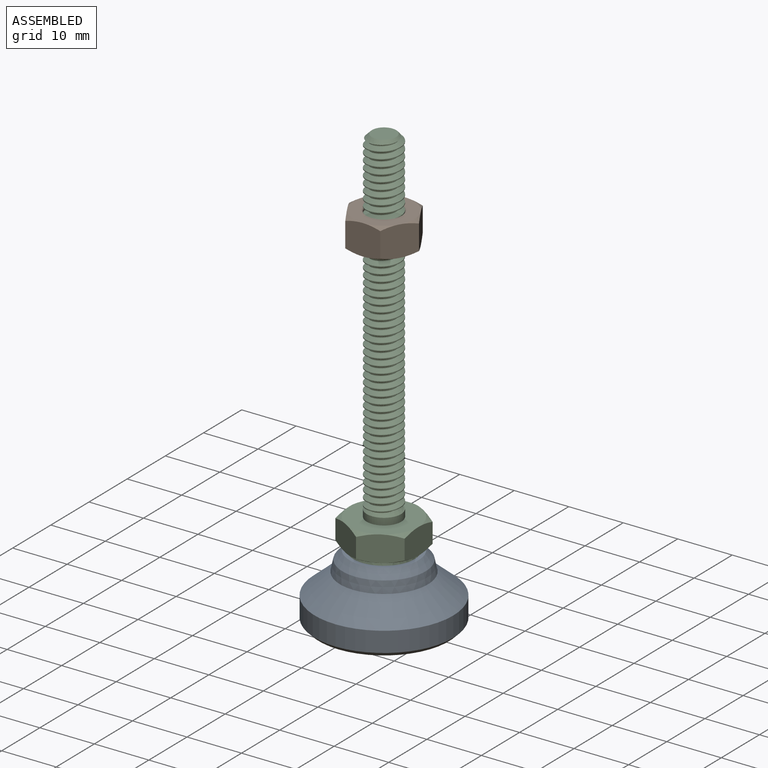
[diagram: assembled view]
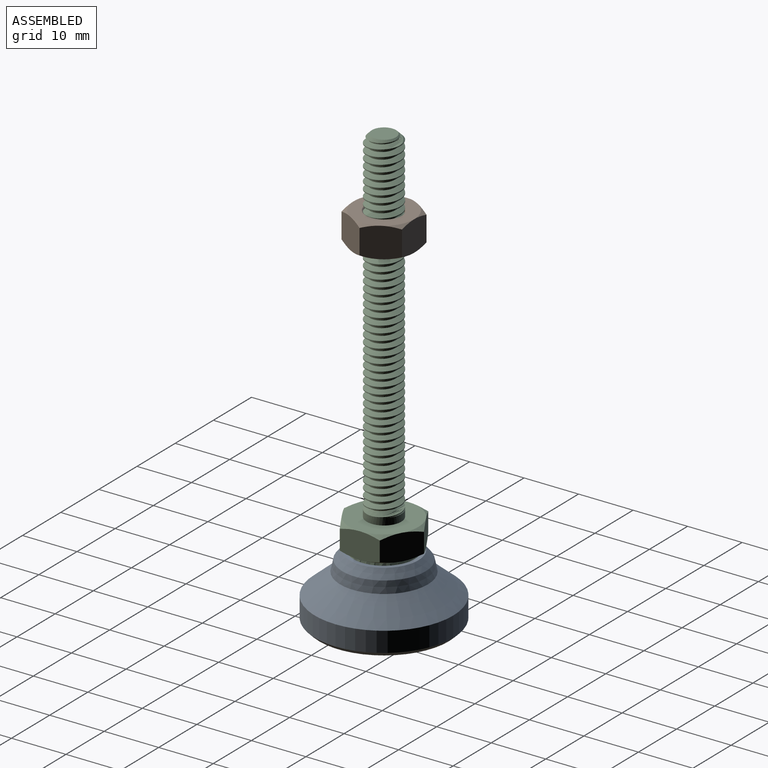
[diagram: assembled view, second angle]
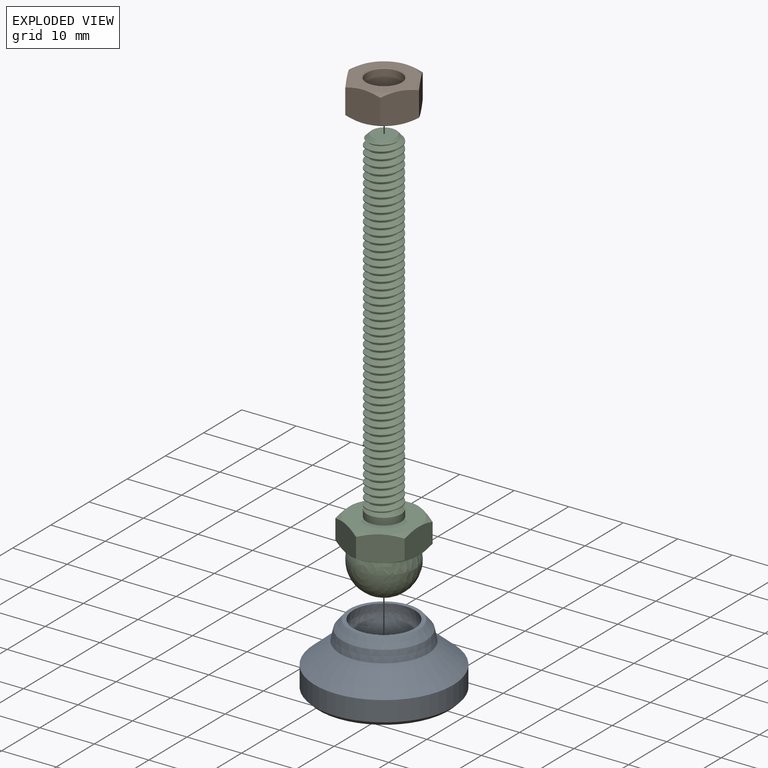
[diagram: exploded view]
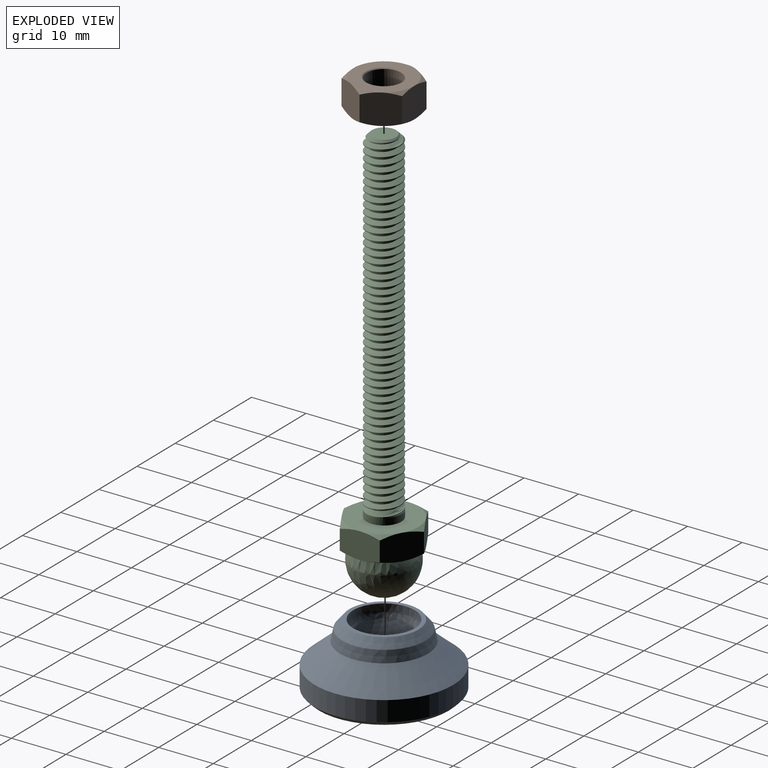
[diagram: exploded view, second angle]
ASSEMBLY  parts=3 mates=2
PART A: 8 faces, bbox 25.4x16.3x25.4 mm
  f0: cone r=12.7mm half-angle=45deg, axis (0,1,0), area 83.4mm2, adj f1,f6
  f1: cylinder r=12.7mm len=25.4mm, axis (0,-1,0), area 293.9mm2, adj f0,f2
  f2: cone r=8.06mm half-angle=49.7deg, axis (0,-1,0), area 396.7mm2, adj f1,f3
  f3: cone r=7.62mm half-angle=12.3deg, axis (0,-1,0), area 102.5mm2, adj f2,f4
  f4: cone r=6.35mm half-angle=39.8deg, axis (0,-1,0), area 87.1mm2, adj f3,f7
  f5: sphere r=5.84mm, area 270.4mm2, adj f7
  f6: plane 23.88x23.88mm, normal (0,-1,0), area 447.7mm2, adj f0
  f7: plane 12.7x12.7mm, normal (0,1,0), area 26.8mm2, adj f4,f5
PART B: 23 faces, bbox 13.4x6.1x13.4 mm
  f0: cylinder r=3.17mm len=6.35mm, axis (0,1,0), area 104.5mm2, adj f1,f2
  f1: cone r=3.17mm half-angle=45deg, axis (0,1,0), area 4.6mm2, adj f0,f6
  f2: cone r=3.33mm half-angle=45deg, axis (0,-1,0), area 4.6mm2, adj f0,f5
  f3: cone r=5.56mm half-angle=60deg, axis (0,1,0), area 3mm2, adj f5,f17,f22
  f4: cone r=6.42mm half-angle=60deg, axis (0,-1,0), area 3mm2, adj f6,f19,f20
  f5: plane 11.11x11.11mm, normal (0,-1,0), area 62.1mm2, adj f2,f3,f12,f13,f14,f15,f16
  f6: plane 11.11x11.11mm, normal (0,1,0), area 62.1mm2, adj f1,f4,f7,f8,f9,f10,f11
  f7: cone r=6.42mm half-angle=60deg, axis (0,-1,0), area 3mm2, adj f6,f17,f22
  f8: cone r=6.42mm half-angle=60deg, axis (0,-1,0), area 3mm2, adj f6,f21,f22
  f9: cone r=6.42mm half-angle=60deg, axis (0,-1,0), area 3mm2, adj f6,f20,f21
  f10: cone r=6.42mm half-angle=60deg, axis (0,-1,0), area 3mm2, adj f6,f18,f19
  f11: cone r=6.42mm half-angle=60deg, axis (0,-1,0), area 3mm2, adj f6,f17,f18
  f12: cone r=5.56mm half-angle=60deg, axis (0,1,0), area 3mm2, adj f5,f21,f22
  f13: cone r=5.56mm half-angle=60deg, axis (0,1,0), area 3mm2, adj f5,f20,f21
  f14: cone r=5.56mm half-angle=60deg, axis (0,1,0), area 3mm2, adj f5,f19,f20
  f15: cone r=5.56mm half-angle=60deg, axis (0,1,0), area 3mm2, adj f5,f18,f19
  f16: cone r=5.56mm half-angle=60deg, axis (0,1,0), area 3mm2, adj f5,f17,f18
  f17: plane 6.08x6.08mm, normal (0.5,0,0.87), area 33.5mm2, adj f3,f7,f11,f16,f18,f22
  f18: plane 6.94x6.09mm, normal (1,0,0), area 33.5mm2, adj f10,f11,f15,f16,f17,f19
  f19: plane 6.08x6.08mm, normal (0.5,0,-0.87), area 33.5mm2, adj f4,f10,f14,f15,f18,f20
  f20: plane 6.08x6.08mm, normal (-0.5,0,-0.87), area 33.5mm2, adj f4,f9,f13,f14,f19,f21
  f21: plane 6.94x6.09mm, normal (-1,0,0), area 33.5mm2, adj f8,f9,f12,f13,f20,f22
  f22: plane 6.08x6.08mm, normal (-0.5,0,0.87), area 33.5mm2, adj f3,f7,f8,f12,f17,f21
PART C: 76 faces, bbox 15.3x77.5x15.3 mm
  f0: cone r=3.17mm half-angle=45deg, axis (0,-1,0), area 10.5mm2, adj f5,f54,f55,f56
  f1: cone r=7.33mm half-angle=60deg, axis (0,-1,0), area 4mm2, adj f57,f69,f70
  f2: cone r=6.35mm half-angle=60deg, axis (0,1,0), area 4mm2, adj f59,f66,f67
  f3: sphere r=5.84mm, area 298.4mm2, adj f59
  f4: cone r=2.21mm half-angle=45deg, axis (0,-1,0), area 12.5mm2, adj f53,f54,f55,f56,f58
  f5: cylinder r=3.17mm len=6.35mm, axis (0,-1,0), area 27.5mm2, adj f0,f6,f54,f56,f57
  f6: cylinder r=3.17mm len=6.35mm, axis (0,-1,0), area 3.2mm2, adj f5,f7,f54,f56
  f7: cylinder r=3.17mm len=6.35mm, axis (0,-1,0), area 3.2mm2, adj f6,f8,f54,f56
  f8: cylinder r=3.17mm len=6.35mm, axis (0,-1,0), area 3.2mm2, adj f7,f9,f54,f56
  f9: cylinder r=3.17mm len=6.35mm, axis (0,-1,0), area 3.2mm2, adj f8,f10,f54,f56
  f10: cylinder r=3.17mm len=6.35mm, axis (0,-1,0), area 3.2mm2, adj f9,f11,f54,f56
  f11: cylinder r=3.17mm len=6.35mm, axis (0,-1,0), area 3.2mm2, adj f10,f12,f54,f56
  f12: cylinder r=3.17mm len=6.35mm, axis (0,-1,0), area 3.2mm2, adj f11,f13,f54,f56
  f13: cylinder r=3.17mm len=6.35mm, axis (0,-1,0), area 3.2mm2, adj f12,f14,f54,f56
  f14: cylinder r=3.17mm len=6.35mm, axis (0,-1,0), area 3.2mm2, adj f13,f15,f54,f56
  f15: cylinder r=3.17mm len=6.35mm, axis (0,-1,0), area 3.2mm2, adj f14,f16,f54,f56
  f16: cylinder r=3.17mm len=6.35mm, axis (0,-1,0), area 3.2mm2, adj f15,f17,f54,f56
  f17: cylinder r=3.17mm len=6.35mm, axis (0,-1,0), area 3.2mm2, adj f16,f18,f54,f56
  f18: cylinder r=3.17mm len=6.35mm, axis (0,-1,0), area 3.2mm2, adj f17,f19,f54,f56
  f19: cylinder r=3.17mm len=6.35mm, axis (0,-1,0), area 3.2mm2, adj f18,f20,f54,f56
  f20: cylinder r=3.17mm len=6.35mm, axis (0,-1,0), area 3.2mm2, adj f19,f21,f54,f56
  f21: cylinder r=3.17mm len=6.35mm, axis (0,-1,0), area 3.2mm2, adj f20,f22,f54,f56
  f22: cylinder r=3.17mm len=6.35mm, axis (0,-1,0), area 3.2mm2, adj f21,f23,f54,f56
  f23: cylinder r=3.17mm len=6.35mm, axis (0,-1,0), area 3.2mm2, adj f22,f24,f54,f56
  f24: cylinder r=3.17mm len=6.35mm, axis (0,-1,0), area 3.2mm2, adj f23,f25,f54,f56
  f25: cylinder r=3.17mm len=6.35mm, axis (0,-1,0), area 3.2mm2, adj f24,f26,f54,f56
  f26: cylinder r=3.17mm len=6.35mm, axis (0,-1,0), area 3.2mm2, adj f25,f27,f54,f56
  f27: cylinder r=3.17mm len=6.35mm, axis (0,-1,0), area 3.2mm2, adj f26,f28,f54,f56
  f28: cylinder r=3.17mm len=6.35mm, axis (0,-1,0), area 3.2mm2, adj f27,f29,f54,f56
  f29: cylinder r=3.17mm len=6.35mm, axis (0,-1,0), area 3.2mm2, adj f28,f30,f54,f56
  f30: cylinder r=3.17mm len=6.35mm, axis (0,-1,0), area 3.2mm2, adj f29,f31,f54,f56
  f31: cylinder r=3.17mm len=6.35mm, axis (0,-1,0), area 3.2mm2, adj f30,f32,f54,f56
  f32: cylinder r=3.17mm len=6.35mm, axis (0,-1,0), area 3.2mm2, adj f31,f33,f54,f56
  f33: cylinder r=3.17mm len=6.35mm, axis (0,-1,0), area 3.2mm2, adj f32,f34,f54,f56
  f34: cylinder r=3.17mm len=6.35mm, axis (0,-1,0), area 3.2mm2, adj f33,f35,f54,f56
  f35: cylinder r=3.17mm len=6.35mm, axis (0,-1,0), area 3.2mm2, adj f34,f36,f54,f56
  f36: cylinder r=3.17mm len=6.35mm, axis (0,-1,0), area 3.2mm2, adj f35,f37,f54,f56
  f37: cylinder r=3.17mm len=6.35mm, axis (0,-1,0), area 3.2mm2, adj f36,f38,f54,f56
  f38: cylinder r=3.17mm len=6.35mm, axis (0,-1,0), area 3.2mm2, adj f37,f39,f54,f56
  f39: cylinder r=3.17mm len=6.35mm, axis (0,-1,0), area 3.2mm2, adj f38,f40,f54,f56
  f40: cylinder r=3.17mm len=6.35mm, axis (0,-1,0), area 3.2mm2, adj f39,f41,f54,f56
  f41: cylinder r=3.17mm len=6.35mm, axis (0,-1,0), area 3.2mm2, adj f40,f42,f54,f56
  f42: cylinder r=3.17mm len=6.35mm, axis (0,-1,0), area 3.2mm2, adj f41,f43,f54,f56
  f43: cylinder r=3.17mm len=6.35mm, axis (0,-1,0), area 3.2mm2, adj f42,f44,f54,f56
  f44: cylinder r=3.17mm len=6.35mm, axis (0,-1,0), area 3.2mm2, adj f43,f45,f54,f56
  f45: cylinder r=3.17mm len=6.35mm, axis (0,-1,0), area 3.2mm2, adj f44,f46,f54,f56
  f46: cylinder r=3.17mm len=6.35mm, axis (0,-1,0), area 3.2mm2, adj f45,f47,f54,f56
  f47: cylinder r=3.17mm len=6.35mm, axis (0,-1,0), area 3.2mm2, adj f46,f48,f54,f56
  f48: cylinder r=3.17mm len=6.35mm, axis (0,-1,0), area 3.2mm2, adj f47,f49,f54,f56
  f49: cylinder r=3.17mm len=6.35mm, axis (0,-1,0), area 3.2mm2, adj f48,f50,f54,f56
  f50: cylinder r=3.17mm len=6.35mm, axis (0,-1,0), area 3.2mm2, adj f49,f51,f54,f56
  f51: cylinder r=3.17mm len=6.35mm, axis (0,-1,0), area 3.2mm2, adj f50,f52,f54,f56
  f52: cylinder r=3.17mm len=6.35mm, axis (0,-1,0), area 3.2mm2, adj f51,f53,f54,f56
  f53: cylinder r=3.17mm len=6.35mm, axis (0,-1,0), area 1.8mm2, adj f4,f52,f54,f56
  f54: bspline ~62.28x6.49mm, area 876.1mm2, adj f0,f4,f5,f6,f7,f8,f9,f10
  f55: cylinder r=2.35mm len=61.27mm, axis (0,1,0), area 113.3mm2, adj f0,f4,f54,f56
  f56: bspline ~63.38x6.49mm, area 798.9mm2, adj f0,f4,f5,f6,f7,f8,f9,f10
  f57: plane 12.7x12.7mm, normal (0,1,0), area 95mm2, adj f1,f5,f71,f72,f73,f74,f75
  f58: plane 4.43x4.43mm, normal (0,1,0), area 15.4mm2, adj f4
  f59: plane 12.7x12.7mm, normal (0,-1,0), area 35.9mm2, adj f2,f3,f60,f61,f62,f63,f64
  f60: cone r=6.35mm half-angle=60deg, axis (0,1,0), area 4mm2, adj f59,f67,f68
  f61: cone r=6.35mm half-angle=60deg, axis (0,1,0), area 4mm2, adj f59,f68,f69
  f62: cone r=6.35mm half-angle=60deg, axis (0,1,0), area 4mm2, adj f59,f69,f70
  f63: cone r=6.35mm half-angle=60deg, axis (0,1,0), area 4mm2, adj f59,f65,f70
  f64: cone r=6.35mm half-angle=60deg, axis (0,1,0), area 4mm2, adj f59,f65,f66
  f65: plane 7.94x5.37mm, normal (1,0,0), area 32.1mm2, adj f63,f64,f66,f70,f74,f75
  f66: plane 6.95x5.36mm, normal (0.5,0,0.87), area 32.1mm2, adj f2,f64,f65,f67,f71,f75
  f67: plane 6.95x5.36mm, normal (-0.5,0,0.87), area 32.1mm2, adj f2,f60,f66,f68,f71,f72
  f68: plane 7.94x5.37mm, normal (-1,0,0), area 32.1mm2, adj f60,f61,f67,f69,f72,f73
  f69: plane 6.95x5.36mm, normal (-0.5,0,-0.87), area 32.1mm2, adj f1,f61,f62,f68,f70,f73
  f70: plane 6.95x5.36mm, normal (0.5,0,-0.87), area 32.1mm2, adj f1,f62,f63,f65,f69,f74
  f71: cone r=7.33mm half-angle=60deg, axis (0,-1,0), area 4mm2, adj f57,f66,f67
  f72: cone r=7.33mm half-angle=60deg, axis (0,-1,0), area 4mm2, adj f57,f67,f68
  f73: cone r=7.33mm half-angle=60deg, axis (0,-1,0), area 4mm2, adj f57,f68,f69
  f74: cone r=7.33mm half-angle=60deg, axis (0,-1,0), area 4mm2, adj f57,f65,f70
  f75: cone r=7.33mm half-angle=60deg, axis (0,-1,0), area 4mm2, adj f57,f65,f66
PLACE A rot(axis=(1,0,0),90deg) t=(-13.42,37.94,-106.39)mm
PLACE B rot(axis=(-0.58,-0.58,0.58),120deg) t=(-13.42,37.94,-5.05)mm
PLACE C rot(axis=(1,0,0),90deg) t=(-13.42,37.94,-106.39)mm
MATE slider C.f1 <-> B.f0  axis (0,0,1) through (-13.42,37.94,-25.43)mm
MATE fastened A.f0 <-> C.f1  axis (0,0,-1) through (-13.42,37.94,-95.98)mm
